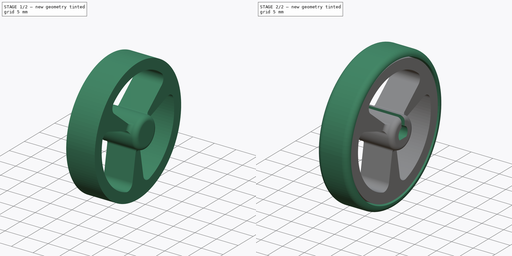
[diagram: build sequence overview — one tinted view per stage of 2, left to right]
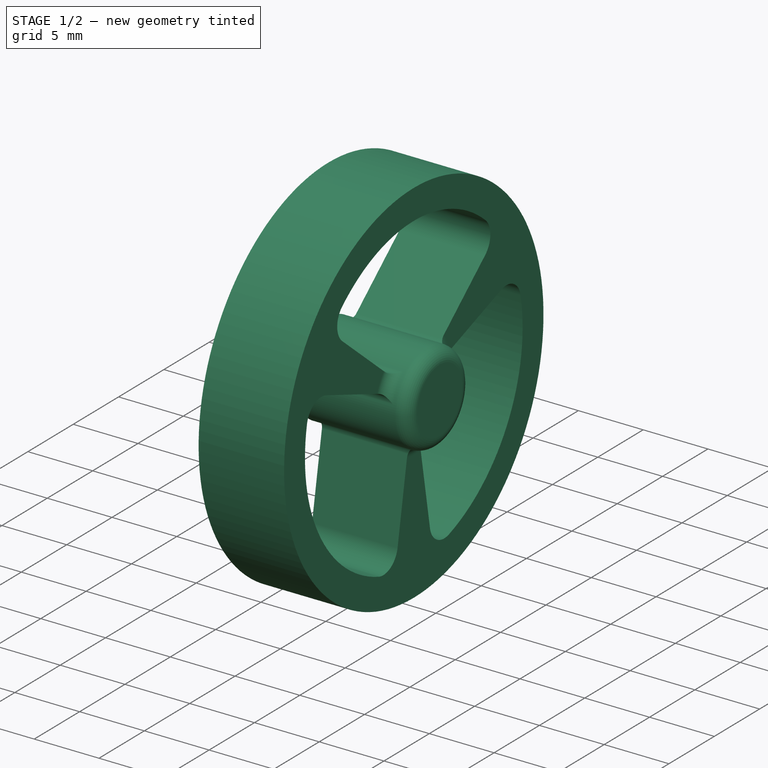
[diagram: stage 1 of 2 — iso view after this stage's code; geometry added in this stage tinted green]
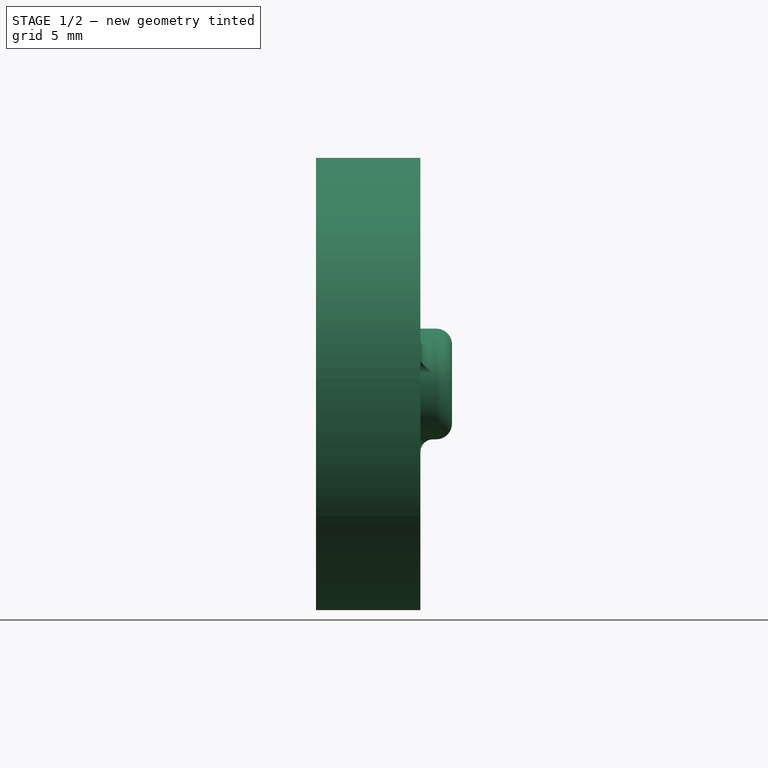
[diagram: stage 1 of 2 — front view after this stage's code; geometry added in this stage tinted green]
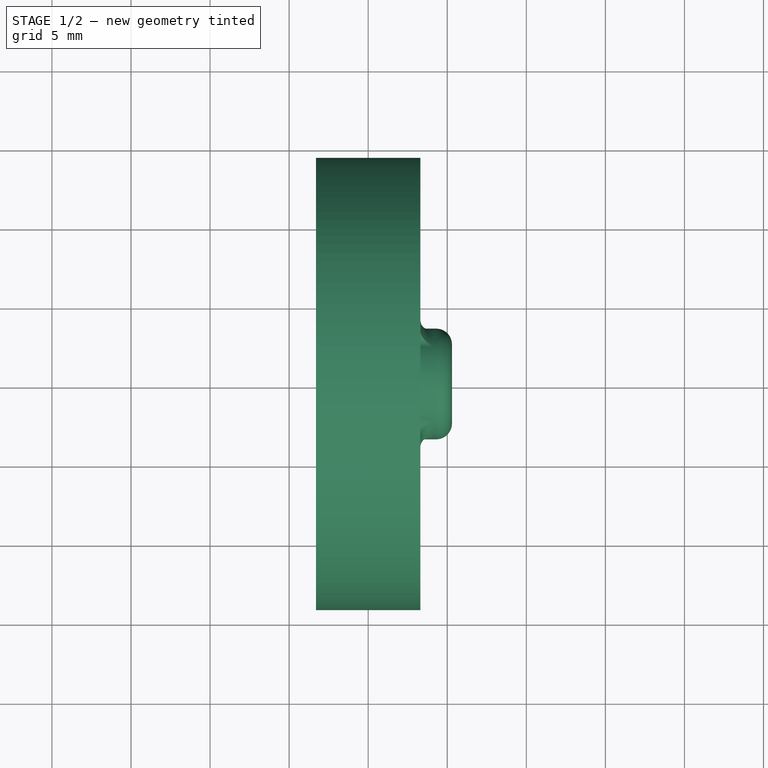
[diagram: stage 1 of 2 — top view after this stage's code; geometry added in this stage tinted green]
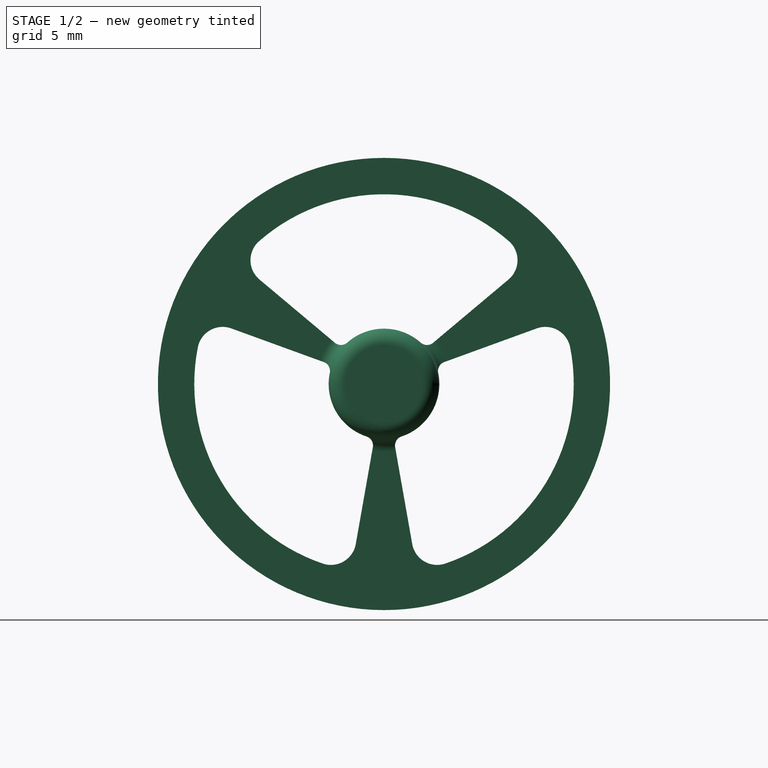
[diagram: stage 1 of 2 — right view after this stage's code; geometry added in this stage tinted green]
FCSTD DOCUMENT  (FreeCAD 0.19R24276 (Git))
Label: Std_Wheel32mm
License: All rights reserved
LicenseURL: http://en.wikipedia.org/wiki/All_rights_reserved
objects: Sketcher::SketchObject×4, PartDesign::Revolution×2, PartDesign::Body×2, PartDesign::Pocket×2, App::Part×1
note: 14 computed .brp shape members not serialized (recipe doc carries the construction recipe); baked Part::Feature solids carry a one-line shape summary decoded from their .brp

FEATURE [PartDesign::Body] Body  label="Tyre"
  Group = -> [Sketch,Revolution]
  Origin = -> Origin001
  Tip = -> Revolution
FEATURE [Sketcher::SketchObject] Sketch001
  FullyConstrained = true
  MapMode = 5
  Placement = pos=(0,0,0) rot=(1,0,0;1.5708rad)
  Support = -> [XZ_Plane001]
  sketch-geometry (10):
    g0: LineSegment StartX=-3.3 StartY=0 StartZ=0 EndX=5.3 EndY=0 EndZ=0
    g1: LineSegment StartX=-3.3 StartY=0 StartZ=0 EndX=-3.3 EndY=14.3 EndZ=0
    g2: LineSegment StartX=-3.3 StartY=14.3 StartZ=0 EndX=3.3 EndY=14.3 EndZ=0
    g3: LineSegment StartX=3.3 StartY=14.3 StartZ=0 EndX=3.3 EndY=4.3 EndZ=0
    g4: LineSegment StartX=4.1 StartY=3.5 StartZ=0 EndX=4.3 EndY=3.5 EndZ=0
    g5: LineSegment StartX=5.3 StartY=2.5 StartZ=0 EndX=5.3 EndY=0 EndZ=0
    g6: ArcOfCircle CenterX=4.1 CenterY=4.3 CenterZ=0 NormalX=0 NormalY=0 NormalZ=1 AngleXU=0 Radius=0.8 StartAngle=3.14159 EndAngle=4.71239
    g7: ArcOfCircle CenterX=4.3 CenterY=2.5 CenterZ=0 NormalX=0 NormalY=0 NormalZ=1 AngleXU=0 Radius=1 StartAngle=-5.3e-15 EndAngle=1.5708
    g8: LineSegment StartX=0 StartY=0 StartZ=0 EndX=0 EndY=4.3 EndZ=0
    g9: LineSegment StartX=3.3 StartY=4.3 StartZ=0 EndX=-3.3 EndY=4.3 EndZ=0
  constraints (27):
    c: Horizontal(g0)
    c: Coincident(g1,g0)
    c: Vertical(g1)
    c: Coincident(g2,g1)
    c: Horizontal(g2)
    c: Coincident(g3,g2)
    c: Vertical(g3)
    c: Horizontal(g4)
    c: Coincident(g5,g0)
    c: Vertical(g5)
    c: Tangent(g4,g6) = -1.5708
    c: Tangent(g3,g6) = -1.5708
    c: Tangent(g4,g7) = 1.5708
    c: Tangent(g5,g7) = 1.5708
    c: Radius(g6) = 0.8
    c: Radius(g7) = 1
    c: Coincident(g8,g-1)
    c: PointOnObject(g8,g-2)
    c: Coincident(g9,g3)
    c: PointOnObject(g9,g1)
    c: Horizontal(g9)
    c: Symmetric(g9,g3,g8)
    c: PointOnObject(g0,g-1)
    c: DistanceX(g3,g0) = 2
    c: DistanceX(g0,g3) = 6.6
    c: DistanceY(g0,g1) = 14.3
    c: DistanceY(g0,g4) = 3.5
FEATURE [PartDesign::Revolution] Revolution001
  Angle = 360
  Axis = (1,0,0)
  Base = (0,0,0)
  Placement = pos=(0,0,0) rot=(1,0,0;1.5708rad)
  Profile = -> Sketch001
  ReferenceAxis = -> X_Axis001
  Reversed = true
FEATURE [Sketcher::SketchObject] Sketch002
  FullyConstrained = true
  MapMode = 5
  Placement = pos=(0,0,0) rot=(0.57735,0.57735,0.57735;2.0944rad)
  Support = -> [YZ_Plane001]
  sketch-geometry (45):
    g0: Circle CenterX=0 CenterY=0 CenterZ=0 NormalX=0 NormalY=0 NormalZ=1 AngleXU=0 Radius=3.5
    g1: Circle CenterX=0 CenterY=0 CenterZ=0 NormalX=0 NormalY=0 NormalZ=1 AngleXU=0 Radius=12
    g2: LineSegment StartX=0 StartY=0 StartZ=0 EndX=-2.68116 EndY=2.24976 EndZ=0
    g3: LineSegment StartX=0 StartY=0 StartZ=0 EndX=2.68116 EndY=2.24976 EndZ=0
    g4: LineSegment StartX=0 StartY=0 StartZ=0 EndX=3.28892 EndY=1.19707 EndZ=0
    g5: LineSegment StartX=0 StartY=0 StartZ=0 EndX=-3.28892 EndY=1.19707 EndZ=0
    g6: LineSegment StartX=0 StartY=0 StartZ=0 EndX=-0.607769 EndY=-3.44683 EndZ=0
    g7: LineSegment StartX=0 StartY=0 StartZ=0 EndX=0.607769 EndY=-3.44683 EndZ=0
    g8: LineSegment StartX=2.68116 StartY=2.24976 StartZ=0 EndX=3.28892 EndY=1.19707 EndZ=0
    g9: LineSegment StartX=-2.68116 StartY=2.24976 StartZ=0 EndX=-3.28892 EndY=1.19707 EndZ=0
    g10: LineSegment StartX=-0.607769 StartY=-3.44683 StartZ=0 EndX=0.607769 EndY=-3.44683 EndZ=0
    g11: GeomPoint X=0 Y=-3.44683 Z=0
    g12: LineSegment StartX=-3.28892 StartY=1.19707 StartZ=0 EndX=-0.607769 EndY=-3.44683 EndZ=0
    g13: LineSegment StartX=0.607769 StartY=-3.44683 StartZ=0 EndX=3.28892 EndY=1.19707 EndZ=0
    g14: LineSegment StartX=2.68116 StartY=2.24976 StartZ=0 EndX=-2.68116 EndY=2.24976 EndZ=0
    g15: LineSegment StartX=3.10697 StartY=2.60706 StartZ=0 EndX=7.87202 EndY=6.60541 EndZ=0
    g16: LineSegment StartX=3.81126 StartY=1.38719 StartZ=0 EndX=9.65646 EndY=3.51466 EndZ=0
    g17: LineSegment StartX=-3.10697 StartY=2.60706 StartZ=0 EndX=-7.87202 EndY=6.60541 EndZ=0
    g18: LineSegment StartX=-3.81126 StartY=1.38718 StartZ=0 EndX=-9.65646 EndY=3.51466 EndZ=0
    g19: LineSegment StartX=0.704285 StartY=-3.99424 StartZ=0 EndX=1.78443 EndY=-10.1201 EndZ=0
    g20: LineSegment StartX=-0.704293 StartY=-3.99424 StartZ=0 EndX=-1.78444 EndY=-10.1201 EndZ=0
    g21: ArcOfCircle CenterX=0 CenterY=0 CenterZ=0 NormalX=0 NormalY=0 NormalZ=1 AngleXU=0 Radius=3.5 StartAngle=0.845001 EndAngle=2.29659
    g22: ArcOfCircle CenterX=0 CenterY=0 CenterZ=0 NormalX=0 NormalY=0 NormalZ=1 AngleXU=0 Radius=3.5 StartAngle=2.9394 EndAngle=4.39099
    g23: ArcOfCircle CenterX=0 CenterY=0 CenterZ=0 NormalX=0 NormalY=0 NormalZ=1 AngleXU=0 Radius=3.5 StartAngle=5.03379 EndAngle=6.48538
    g24: ArcOfCircle CenterX=0 CenterY=0 CenterZ=0 NormalX=0 NormalY=0 NormalZ=1 AngleXU=0 Radius=12 StartAngle=0.852591 EndAngle=2.289
    g25: ArcOfCircle CenterX=0 CenterY=0 CenterZ=0 NormalX=0 NormalY=0 NormalZ=1 AngleXU=0 Radius=12 StartAngle=5.04138 EndAngle=6.47779
    g26: ArcOfCircle CenterX=0 CenterY=0 CenterZ=0 NormalX=0 NormalY=0 NormalZ=1 AngleXU=0 Radius=12 StartAngle=2.94699 EndAngle=4.3834
    g27: ArcOfCircle CenterX=-6.84356 CenterY=7.83108 CenterZ=0 NormalX=0 NormalY=0 NormalZ=1 AngleXU=0 Radius=1.6 StartAngle=2.289 EndAngle=4.01426
    g28: ArcOfCircle CenterX=6.84356 CenterY=7.83108 CenterZ=0 NormalX=0 NormalY=0 NormalZ=1 AngleXU=0 Radius=1.6 StartAngle=5.41052 EndAngle=7.13578
    g29: ArcOfCircle CenterX=2.7213 CenterY=3.06668 CenterZ=0 NormalX=0 NormalY=0 NormalZ=1 AngleXU=0 Radius=0.6 StartAngle=3.98659 EndAngle=5.41052
    g30: ArcOfCircle CenterX=-2.7213 CenterY=3.06668 CenterZ=0 NormalX=0 NormalY=0 NormalZ=1 AngleXU=0 Radius=0.6 StartAngle=4.01426 EndAngle=5.43818
    g31: LineSegment StartX=3.10697 StartY=2.60706 StartZ=0 EndX=2.68116 EndY=2.24976 EndZ=0
    g32: LineSegment StartX=-3.10697 StartY=2.60706 StartZ=0 EndX=-2.68116 EndY=2.24976 EndZ=0
    g33: ArcOfCircle CenterX=-10.2037 CenterY=2.01115 CenterZ=0 NormalX=0 NormalY=0 NormalZ=1 AngleXU=0 Radius=1.6 StartAngle=1.22173 EndAngle=2.94699
    g34: ArcOfCircle CenterX=-3.36013 CenterY=-9.84223 CenterZ=0 NormalX=0 NormalY=0 NormalZ=1 AngleXU=0 Radius=1.6 StartAngle=4.3834 EndAngle=6.10865
    g35: ArcOfCircle CenterX=3.36013 CenterY=-9.84223 CenterZ=0 NormalX=0 NormalY=0 NormalZ=1 AngleXU=0 Radius=1.6 StartAngle=3.31613 EndAngle=5.04138
    g36: ArcOfCircle CenterX=10.2037 CenterY=2.01115 CenterZ=0 NormalX=0 NormalY=0 NormalZ=1 AngleXU=0 Radius=1.6 StartAngle=0.194606 EndAngle=1.91986
    g37: ArcOfCircle CenterX=-4.01648 CenterY=0.823363 CenterZ=0 NormalX=0 NormalY=0 NormalZ=1 AngleXU=0 Radius=0.6 StartAngle=6.08099 EndAngle=7.50492
    g38: ArcOfCircle CenterX=-1.29518 CenterY=-3.89005 CenterZ=0 NormalX=0 NormalY=0 NormalZ=1 AngleXU=0 Radius=0.6 StartAngle=6.10865 EndAngle=7.53258
    g39: LineSegment StartX=-3.28892 StartY=1.19707 StartZ=0 EndX=-3.81126 EndY=1.38718 EndZ=0
    g40: LineSegment StartX=-0.704293 StartY=-3.99424 StartZ=0 EndX=-0.607769 EndY=-3.44683 EndZ=0
    g41: ArcOfCircle CenterX=1.29517 CenterY=-3.89006 CenterZ=0 NormalX=0 NormalY=0 NormalZ=1 AngleXU=0 Radius=0.6 StartAngle=1.8922 EndAngle=3.31613
    g42: ArcOfCircle CenterX=4.01647 CenterY=0.82337 CenterZ=0 NormalX=0 NormalY=0 NormalZ=1 AngleXU=0 Radius=0.6 StartAngle=1.91986 EndAngle=3.34379
    g43: LineSegment StartX=0.704285 StartY=-3.99424 StartZ=0 EndX=0.607769 EndY=-3.44683 EndZ=0
    g44: LineSegment StartX=3.28892 StartY=1.19707 StartZ=0 EndX=3.81126 EndY=1.38719 EndZ=0
  constraints (107):
    c: Coincident(g0,g-1)
    c: Coincident(g1,g-1)
    c: Diameter(g1) = 24
    c: Diameter(g0) = 7
    c: Coincident(g2,g-1)
    c: PointOnObject(g2,g0)
    c: Coincident(g3,g-1)
    c: PointOnObject(g3,g0)
    c: Coincident(g4,g-1)
    c: PointOnObject(g4,g0)
    c: Coincident(g5,g-1)
    c: PointOnObject(g5,g0)
    c: Coincident(g6,g-1)
    c: PointOnObject(g6,g0)
    c: Coincident(g7,g-1)
    c: PointOnObject(g7,g0)
    c: Coincident(g8,g3)
    c: Coincident(g8,g4)
    c: Coincident(g9,g2)
    c: Coincident(g9,g5)
    c: Coincident(g10,g6)
    c: Coincident(g10,g7)
    c: PointOnObject(g11,g-2)
    c: Symmetric(g6,g7,g11)
    c: Equal(g10,g8)
    c: Equal(g8,g9)
    c: Coincident(g12,g5)
    c: Coincident(g12,g6)
    c: Coincident(g13,g7)
    c: Coincident(g13,g4)
    c: Coincident(g14,g3)
    c: Coincident(g14,g2)
    c: Horizontal(g14)
    c: Equal(g14,g13)
    c: Angle(g4,g3) = 0.349066
    c: Parallel(g15,g3)
    c: Parallel(g16,g4)
    c: Parallel(g19,g7)
    c: Parallel(g6,g20)
    c: Parallel(g5,g18)
    c: Parallel(g2,g17)
    c: Coincident(g21,g-1)
    c: Coincident(g22,g21)
    c: Coincident(g23,g21)
    c: Coincident(g24,g21)
    c: Coincident(g25,g21)
    c: Coincident(g26,g21)
    c: Tangent(g17,g27) = 1.5708
    c: Tangent(g24,g27) = -1.5708
    c: Tangent(g15,g28) = -1.5708
    c: Tangent(g24,g28) = -1.5708
    c: Equal(g27,g28)
    c: PointOnObject(g24,g1)
    c: Radius(g28) = 1.6
    c: Tangent(g15,g29) = -1.5708
    c: Tangent(g21,g29) = 1.5708
    c: Tangent(g21,g30) = 1.5708
    c: Tangent(g17,g30) = 1.5708
    c: Equal(g29,g30)
    c: Radius(g29) = 0.6
    c: PointOnObject(g21,g0)
    c: Coincident(g31,g15)
    c: Coincident(g31,g3)
    c: Coincident(g32,g17)
    c: Coincident(g32,g2)
    c: Parallel(g2,g32)
    c: Parallel(g31,g3)
    c: Tangent(g18,g33) = -1.5708
    c: Tangent(g26,g33) = -1.5708
    c: Tangent(g26,g34) = -1.5708
    c: Tangent(g20,g34) = 1.5708
    c: Tangent(g19,g35) = -1.5708
    c: Tangent(g25,g35) = -1.5708
    c: Tangent(g25,g36) = -1.5708
    c: Tangent(g16,g36) = 1.5708
    c: Equal(g28,g36)
    c: Equal(g36,g35)
    c: Equal(g35,g34)
    c: Equal(g34,g33)
    c: PointOnObject(g25,g1)
    c: PointOnObject(g26,g1)
    c: Tangent(g18,g37) = -1.5708
    c: Tangent(g22,g37) = 1.5708
    c: Tangent(g22,g38) = 1.5708
    c: Tangent(g20,g38) = 1.5708
    c: Equal(g37,g30)
    c: Equal(g37,g38)
    c: PointOnObject(g22,g0)
    c: Coincident(g39,g5)
    c: Coincident(g39,g18)
    c: Tangent(g39,g37)
    c: Coincident(g40,g20)
    c: Coincident(g40,g6)
    c: Parallel(g6,g40)
    c: Tangent(g23,g41) = 1.5708
    c: Tangent(g19,g41) = -1.5708
    c: Tangent(g16,g42) = 1.5708
    c: Tangent(g23,g42) = 1.5708
    c: PointOnObject(g23,g0)
    c: Equal(g38,g41)
    c: Equal(g41,g42)
    c: Coincident(g43,g19)
    c: Coincident(g43,g7)
    c: Tangent(g43,g41)
    c: Coincident(g44,g4)
    c: Coincident(g44,g16)
    c: Parallel(g16,g44)
FEATURE [PartDesign::Pocket] Pocket
  BaseFeature = -> Revolution001
  Length = 5
  Length2 = 100
  Midplane = true
  Placement = pos=(0,0,0) rot=(1,0,0;1.5708rad)
  Profile = -> Sketch002
  Type = 1
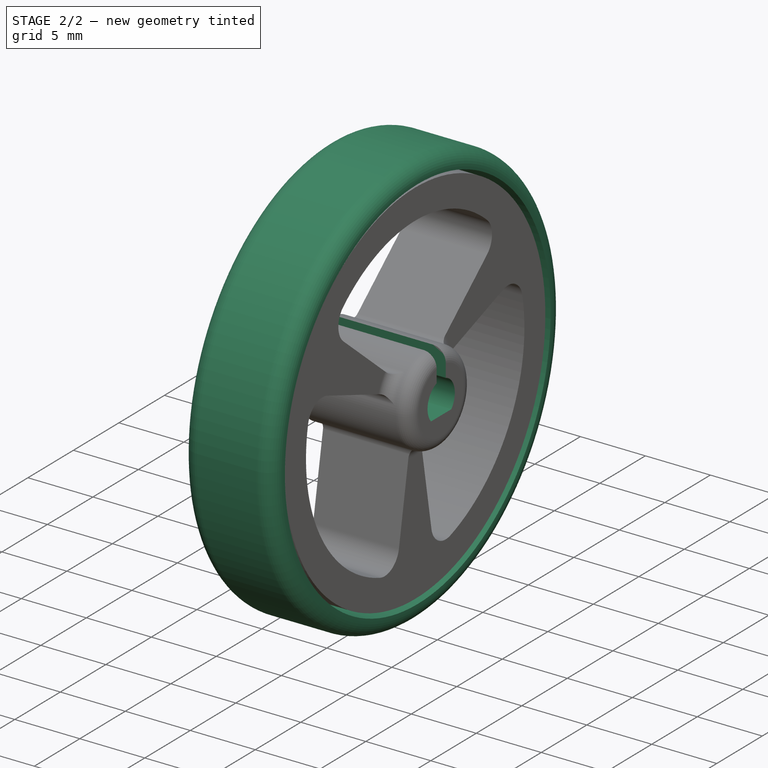
[diagram: stage 2 of 2 — iso view after this stage's code; geometry added in this stage tinted green]
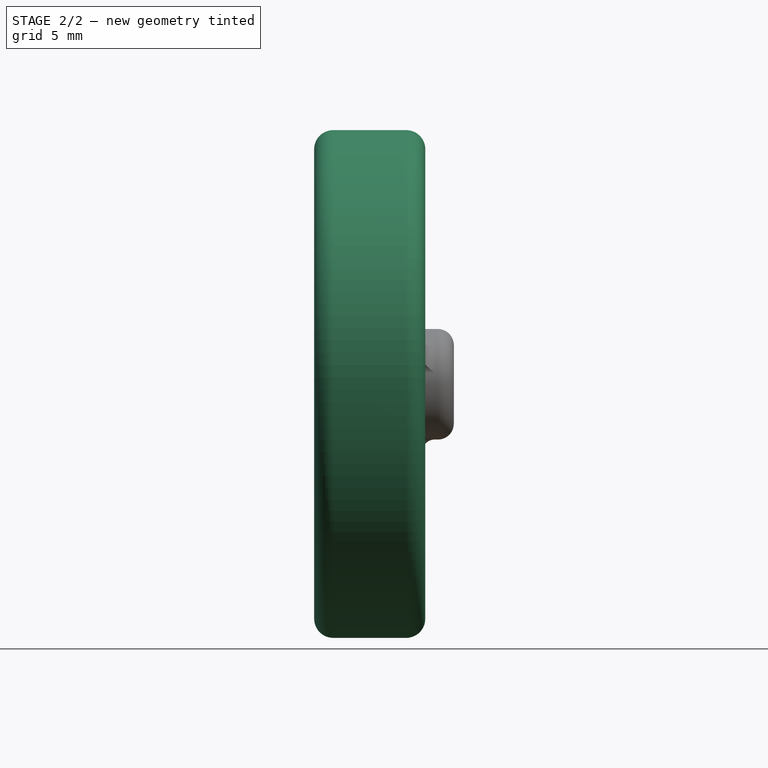
[diagram: stage 2 of 2 — front view after this stage's code; geometry added in this stage tinted green]
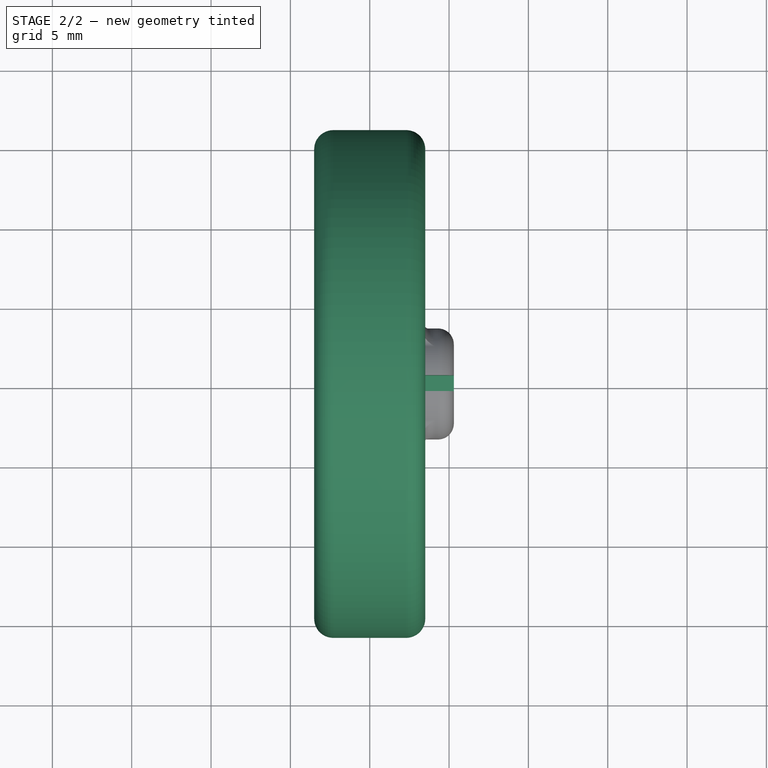
[diagram: stage 2 of 2 — top view after this stage's code; geometry added in this stage tinted green]
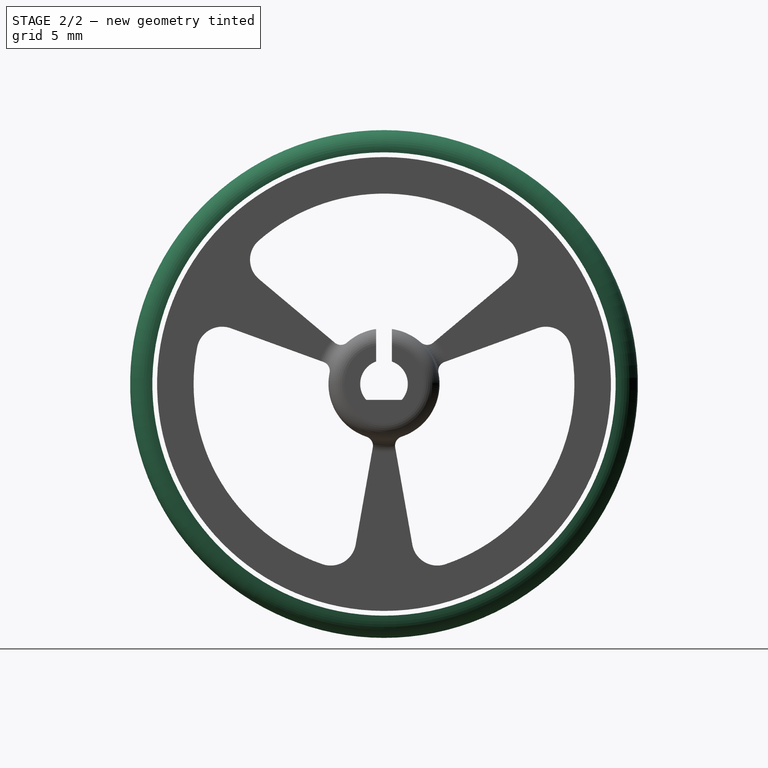
[diagram: stage 2 of 2 — right view after this stage's code; geometry added in this stage tinted green]
FEATURE [Sketcher::SketchObject] Sketch
  FullyConstrained = true
  MapMode = 5
  Placement = pos=(0,0,0) rot=(1,0,0;1.5708rad)
  Support = -> [XZ_Plane001]
  sketch-geometry (7):
    g0: LineSegment StartX=-2.3 StartY=16 StartZ=0 EndX=2.3 EndY=16 EndZ=0
    g1: LineSegment StartX=3.5 StartY=14.8 StartZ=0 EndX=3.5 EndY=14.6 EndZ=0
    g2: LineSegment StartX=3.5 StartY=14.6 StartZ=0 EndX=-3.5 EndY=14.6 EndZ=0
    g3: LineSegment StartX=-3.5 StartY=14.6 StartZ=0 EndX=-3.5 EndY=14.8 EndZ=0
    g4: LineSegment StartX=0 StartY=0 StartZ=0 EndX=0 EndY=14.6 EndZ=0
    g5: ArcOfCircle CenterX=-2.3 CenterY=14.8 CenterZ=0 NormalX=0 NormalY=0 NormalZ=1 AngleXU=0 Radius=1.2 StartAngle=1.5708 EndAngle=3.14159
    g6: ArcOfCircle CenterX=2.3 CenterY=14.8 CenterZ=0 NormalX=0 NormalY=0 NormalZ=1 AngleXU=0 Radius=1.2 StartAngle=-9e-16 EndAngle=1.5708
  constraints (18):
    c: Coincident(g1,g2)
    c: Coincident(g2,g3)
    c: Horizontal(g0)
    c: Horizontal(g2)
    c: Vertical(g1)
    c: Vertical(g3)
    c: Coincident(g4,g-1)
    c: PointOnObject(g4,g-2)
    c: Symmetric(g2,g1,g4)
    c: Tangent(g3,g5) = 1.5708
    c: Tangent(g0,g5) = 1.5708
    c: Tangent(g0,g6) = 1.5708
    c: Tangent(g1,g6) = 1.5708
    c: DistanceX(g2,g1) = 7
    c: Equal(g6,g5)
    c: Radius(g6) = 1.2
    c: DistanceY(g-1,g0) = 16
    c: DistanceY(g-1,g1) = 14.6
FEATURE [PartDesign::Revolution] Revolution
  Angle = 360
  Axis = (1,0,0)
  Base = (0,0,0)
  Placement = pos=(0,0,0) rot=(1,0,0;1.5708rad)
  Profile = -> Sketch
  ReferenceAxis = -> X_Axis001
FEATURE [Sketcher::SketchObject] Sketch003
  FullyConstrained = true
  MapMode = 5
  Placement = pos=(0,0,0) rot=(0.57735,0.57735,0.57735;2.0944rad)
  Support = -> [YZ_Plane002]
  sketch-geometry (8):
    g0: Circle CenterX=0 CenterY=0 CenterZ=0 NormalX=0 NormalY=0 NormalZ=1 AngleXU=0 Radius=1.5
    g1: LineSegment StartX=-1.11803 StartY=-1 StartZ=0 EndX=1.11803 EndY=-1 EndZ=0
    g2: LineSegment StartX=-0.5 StartY=5.41421 StartZ=0 EndX=0.5 EndY=5.41421 EndZ=0
    g3: LineSegment StartX=-0.5 StartY=5.41421 StartZ=0 EndX=-0.5 EndY=1.41421 EndZ=0
    g4: LineSegment StartX=0.5 StartY=5.41421 StartZ=0 EndX=0.5 EndY=1.41421 EndZ=0
    g5: LineSegment StartX=0 StartY=0 StartZ=0 EndX=0 EndY=5.41421 EndZ=0
    g6: ArcOfCircle CenterX=0 CenterY=0 CenterZ=0 NormalX=0 NormalY=0 NormalZ=1 AngleXU=0 Radius=1.5 StartAngle=1.91063 EndAngle=3.87132
    g7: ArcOfCircle CenterX=0 CenterY=0 CenterZ=0 NormalX=0 NormalY=0 NormalZ=1 AngleXU=0 Radius=1.5 StartAngle=5.55346 EndAngle=7.51414
  constraints (22):
    c: Coincident(g0,g-1)
    c: Diameter(g0) = 3
    c: Horizontal(g2)
    c: Coincident(g3,g2)
    c: PointOnObject(g3,g0)
    c: Vertical(g3)
    c: Coincident(g4,g2)
    c: PointOnObject(g4,g0)
    c: Vertical(g4)
    c: Coincident(g5,g-1)
    c: PointOnObject(g5,g-2)
    c: Symmetric(g2,g2,g5)
    c: DistanceX(g2,g2) = 1
    c: Distance(g4) = 4
    c: Horizontal(g1)
    c: Coincident(g6,g-1)
    c: Coincident(g7,g6)
    c: Coincident(g6,g1)
    c: Coincident(g6,g3)
    c: Coincident(g7,g4)
    c: Coincident(g1,g7)
    c: DistanceY(g1,g6) = 1
FEATURE [PartDesign::Pocket] Pocket001
  BaseFeature = -> Pocket
  Length = 5
  Length2 = 100
  Midplane = true
  Placement = pos=(0,0,0) rot=(1,0,0;1.5708rad)
  Profile = -> Sketch003
  Type = 1
FEATURE [PartDesign::Body] Body001  label="Hub"
  Group = -> [Sketch001,Revolution001,Sketch002,Pocket,Sketch003,Pocket001]
  Origin = -> Origin002
  Tip = -> Pocket001
FEATURE [App::Part] Part  label="Wheel32mm"
  Group = -> [Body,Body001]
  Origin = -> Origin
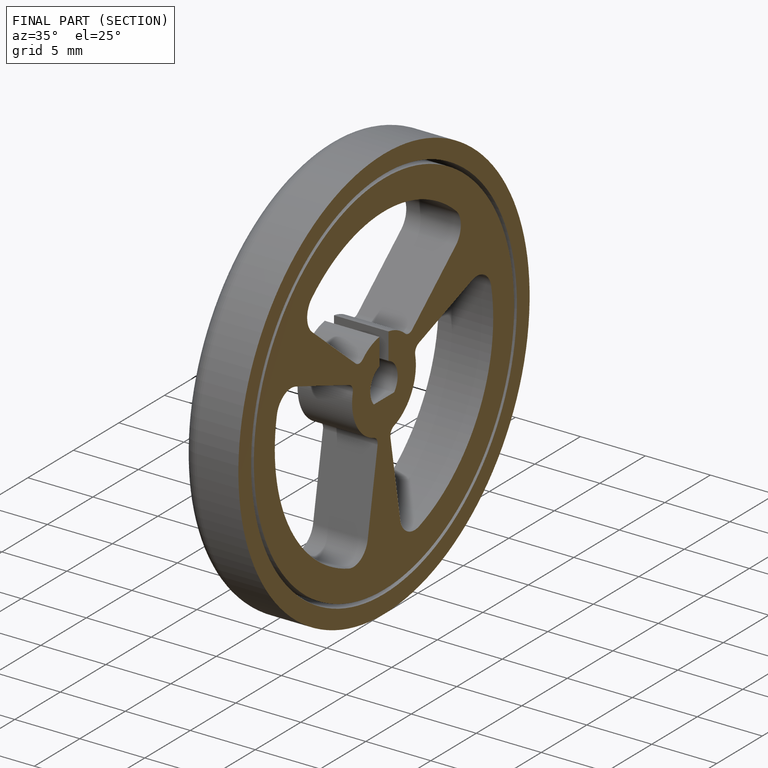
[diagram: finished part — half-section view (interior)]
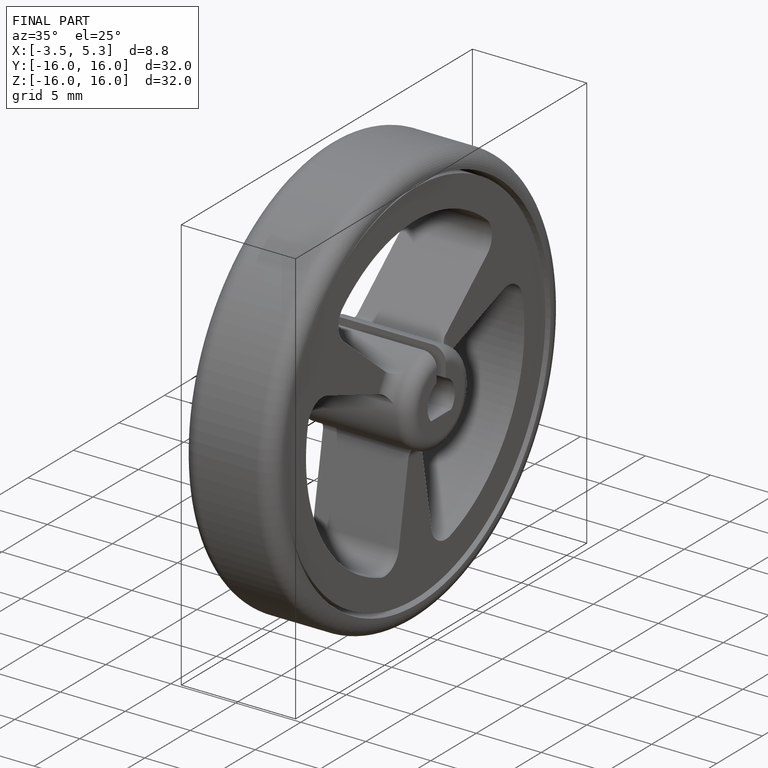
[diagram: finished part — iso view with bounding-box wireframe]
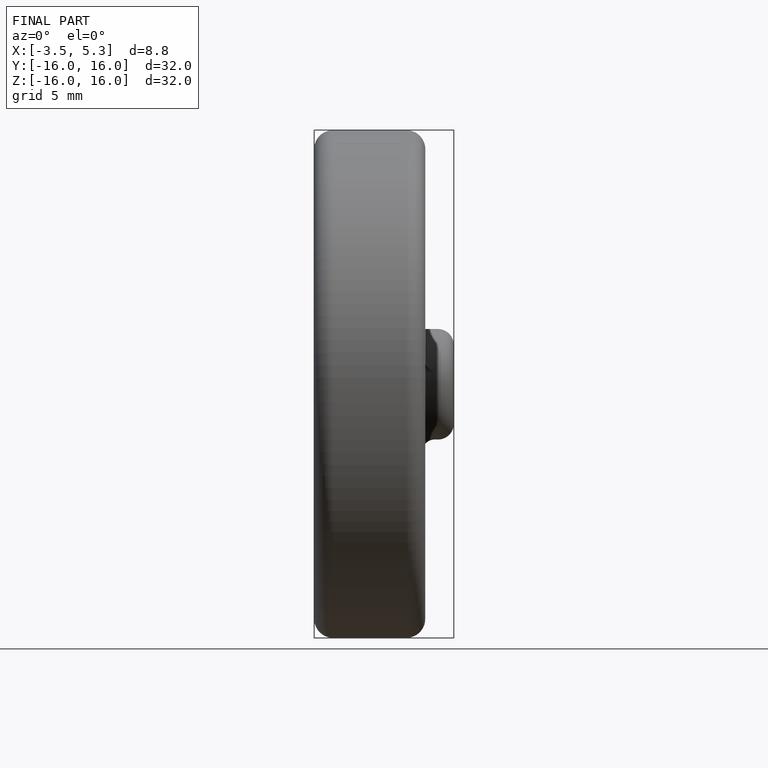
[diagram: finished part — front view with bounding-box wireframe]
